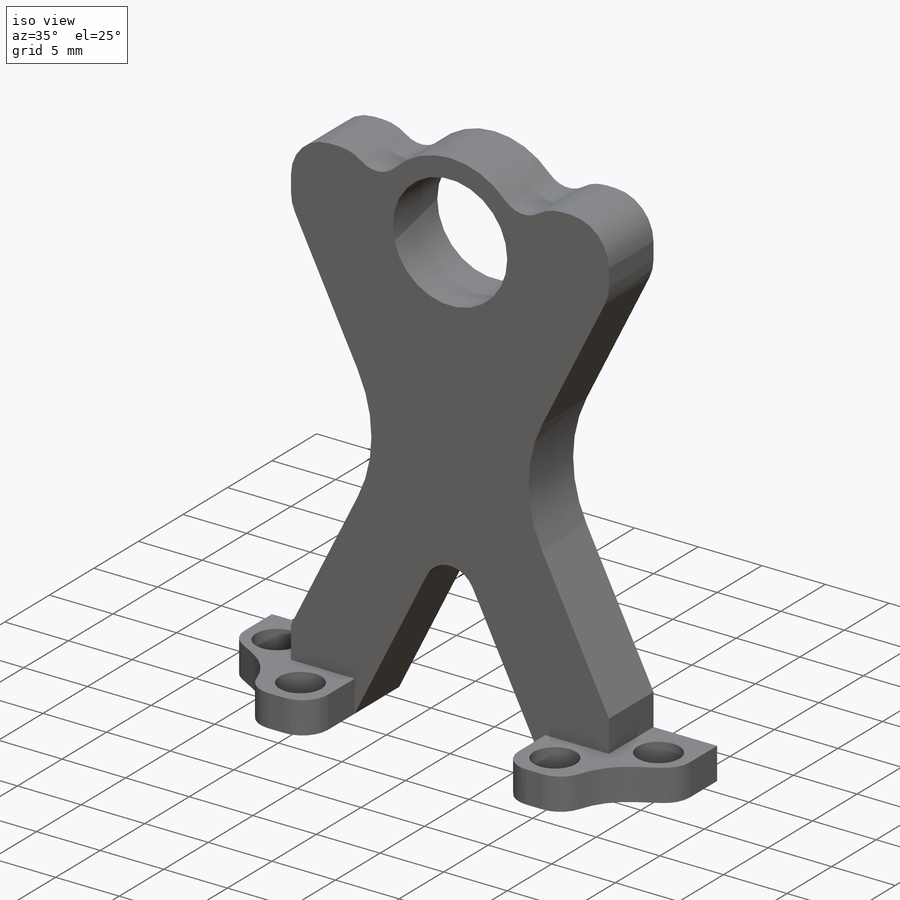
[diagram: iso view]
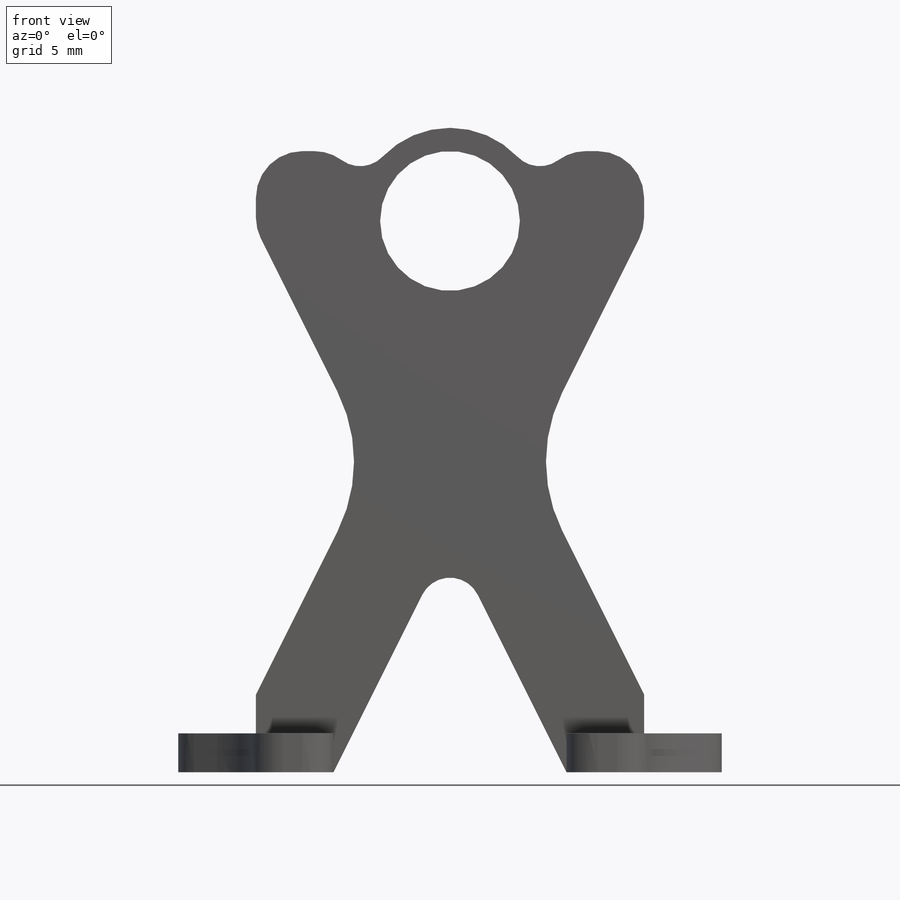
[diagram: front view]
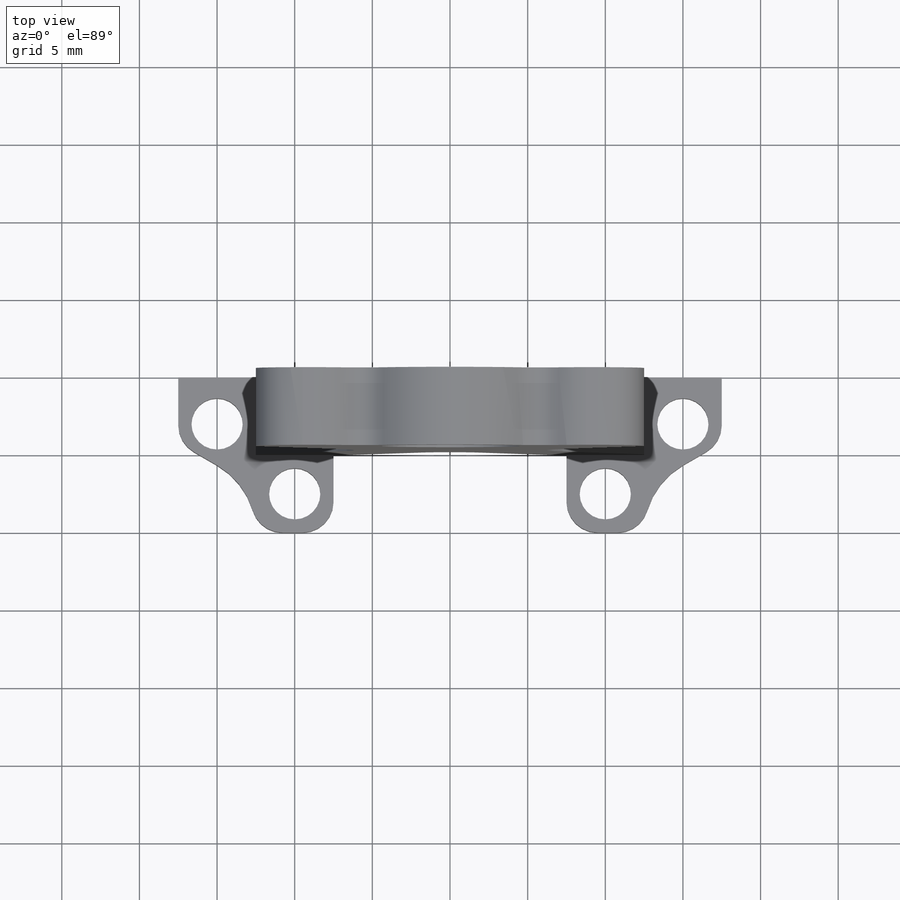
[diagram: top view]
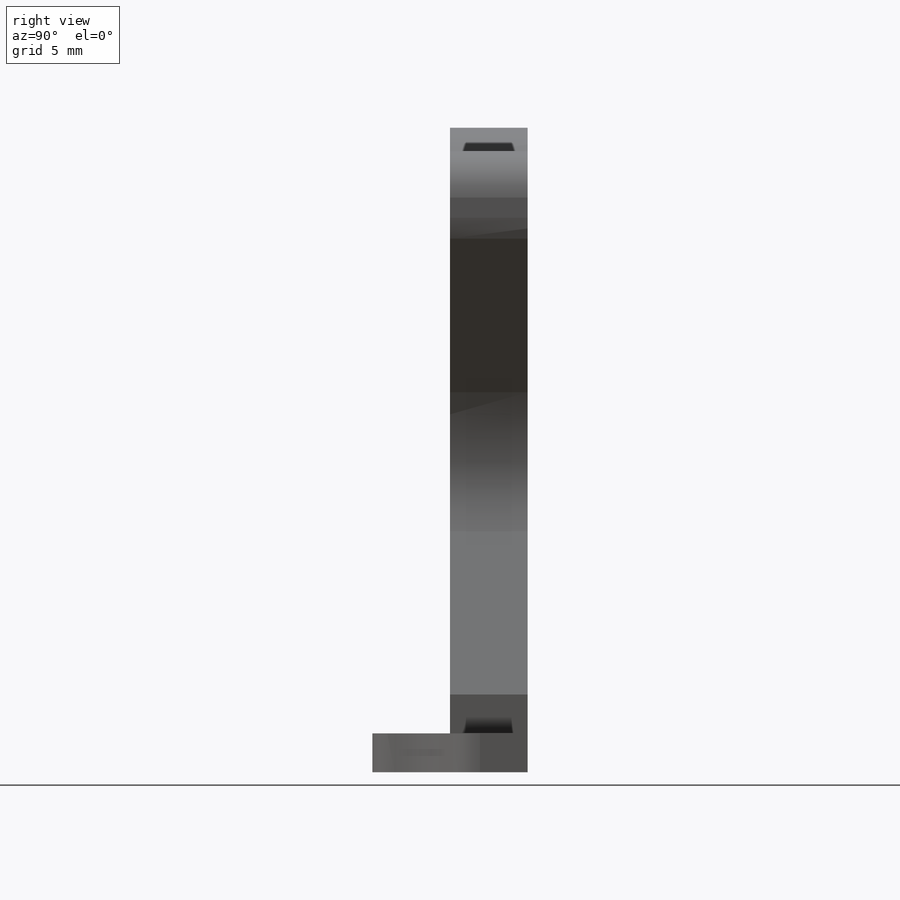
[diagram: right view]
SOLIDWORKS PART (.sldprt)
format: sldprt  version: not decoded by parser v0  size: 401,408 bytes
history: native  units: mm
features: fillet x7, sketch x6, extrude x4, cut_extrude x2, material x1, chamfer x1 (+13 scaffold rows collapsed)
feature tree (34):
  scaffold x13  (default folders/planes/origin — collapsed)
  material  "Material <not specified>"
  sketch  "Sketch1"  dims[c1.D2=~54.325518mm c1.D3=~3.123464mm c1.D4=~7.128505mm c1.D1=762.0mm c2.D2=647.7mm c2.D3=635.0mm c2.D4=0.0mm c2.D5=127.0mm c2.D6=127.0mm c2.D7=127.0mm c2.D8=127.0mm c2.D9=0.0mm c2.D10=190.5mm c3.D7=127.0mm c3.D9=127.0mm c3.D10=0.0mm c3.D1=25.0mm c3.D2=40.0mm c3.D3=35.5mm c3.D4=5.0mm c3.D5=5.0mm c3.D6=5.0mm c4.D7=5.0mm c4.D8=5.0mm c4.D9=5.0mm c4.D10=0.0mm c4.D11=0.0mm c4.D12=5.0mm c4.D13=2.5mm c4.D14=0.0mm c4.D15=5.0mm c4.D16=5.0mm c4.D17=5.0mm c4.D18=0.0mm c4.D19=5.0mm c5.D10=5.0mm c5.D13=20.0mm]
  extrude  "Boss-Extrude2"  Depth=5mm
  sketch  "Sketch2"
  extrude  "Boss-Extrude3"  Depth=10mm
  sketch  "Sketch3"
  extrude  "Boss-Extrude4"  Depth=5mm
  sketch  "Sketch4"
  extrude  "Boss-Extrude5"  Depth=5mm
  sketch  "Sketch5"  dims[c1.D1=~0.612379mm c1.D2=~1.06426mm c1.D3=~1.171906mm c2.D1=3.0mm c2.D2=3.0mm]
  cut_extrude  "Cut-Extrude1"  Depth=5mm
  chamfer  "Chamfer1"  Distance=10mm Angle=30deg
  fillet  "Fillet1"  Radius=2mm
  fillet  "Fillet2"  Radius=5mm
  fillet  "Fillet3"  Radius=2mm
  fillet  "Fillet4"  Radius=2mm
  fillet  "Fillet5"  Radius=10mm
  fillet  "Fillet6"  Radius=3mm
  sketch  "Sketch6"  dims[D1=7.5mm D2=7.5mm D3=5.0mm]
  cut_extrude  "Cut-Extrude2"  Depth=5mm
  fillet  "Fillet10"  Radius=2mm
decode coverage: 17 of 20 modeling features carry decoded parameters
note: ~ marks probable driven/reference dimensions
note: suppression state not decoded; provenance and decode notes live in map.json
